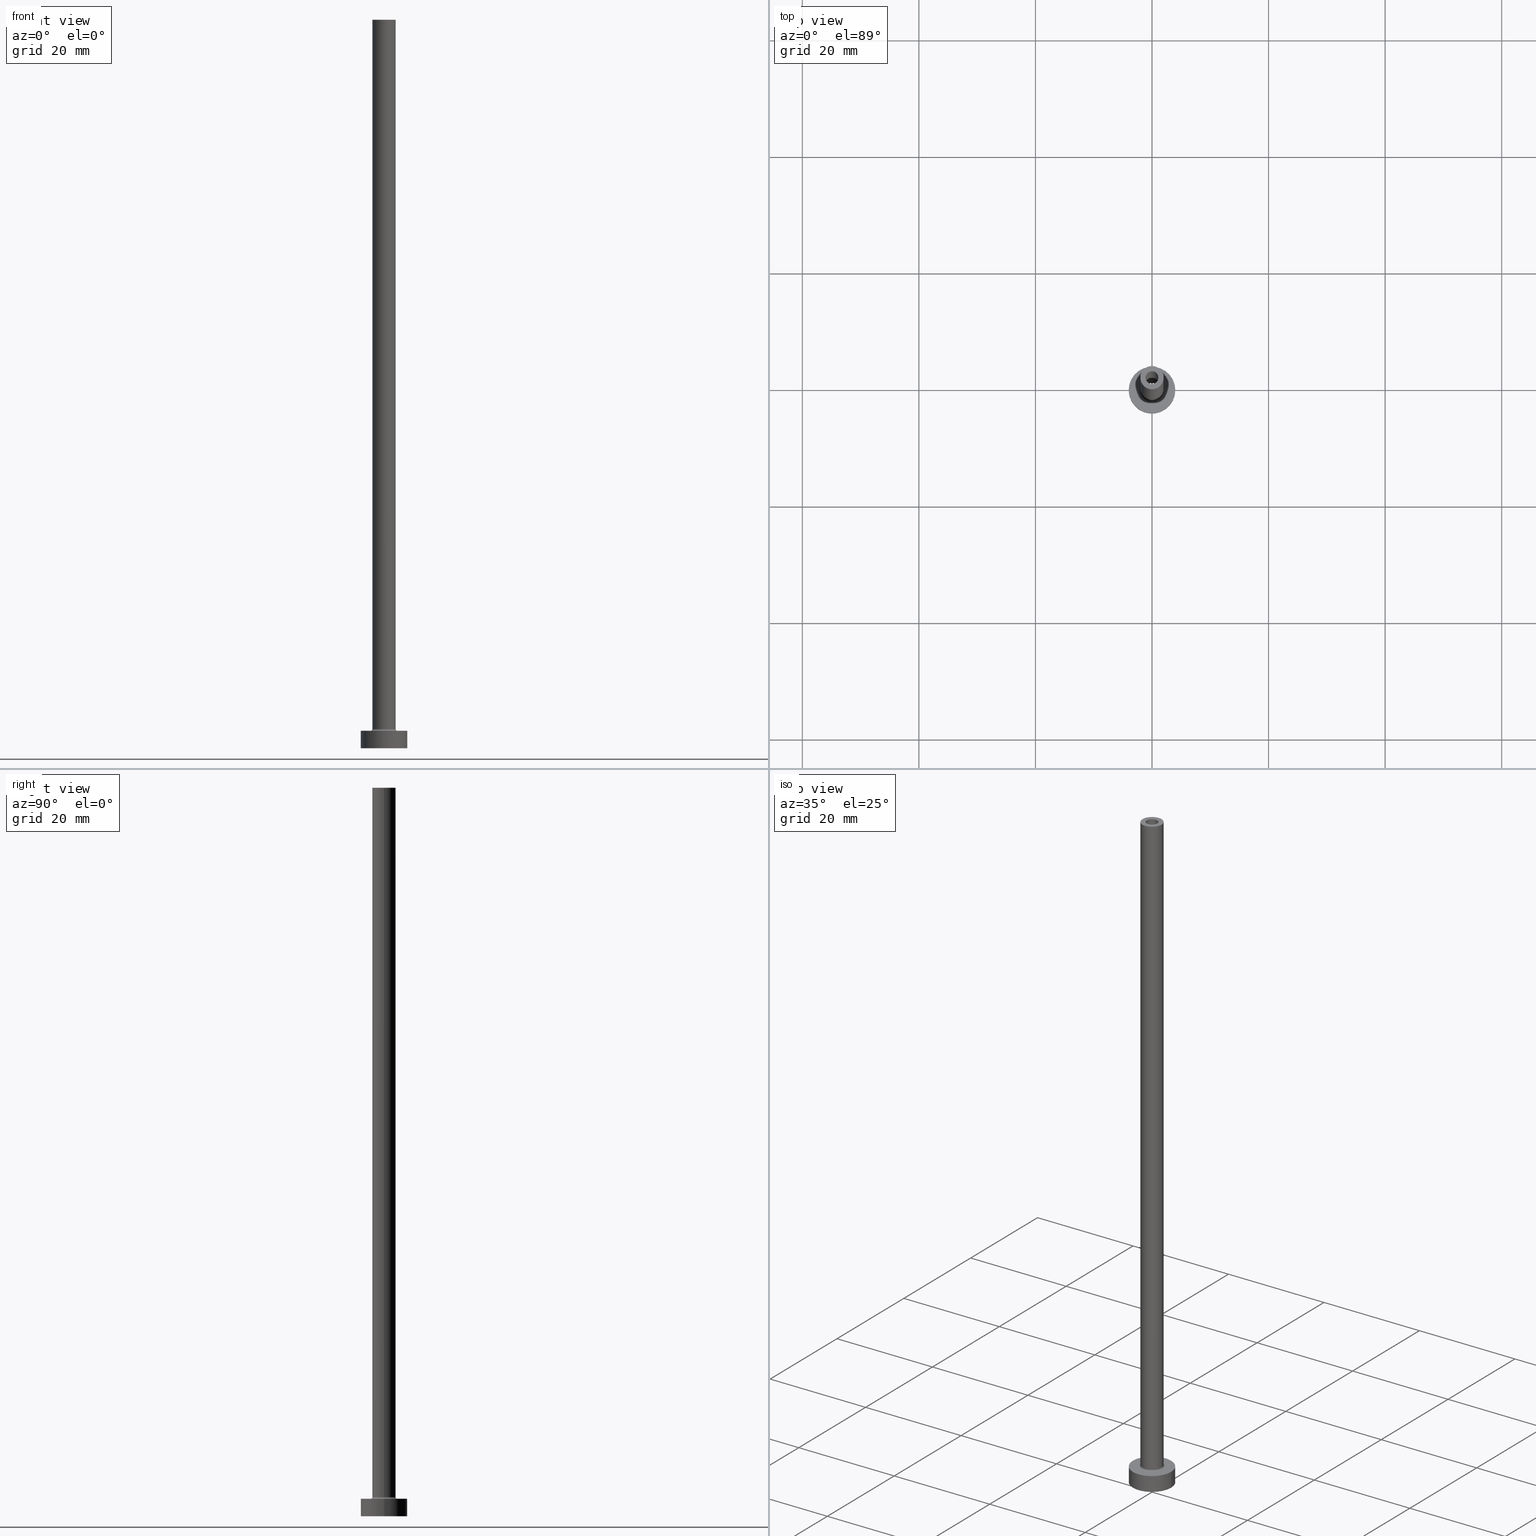
[diagram: canonical four-view strip — front | top / right | iso, engineering-drawing reading convention]
A machine part, canonical four-view strip (front | top / right | iso — engineering-drawing reading convention). The complete STEP part file that produces these views, byte-faithful:
ISO-10303-21;
HEADER;
FILE_DESCRIPTION (( 'STEP AP203' ),
    '1' );
FILE_NAME ('f923.STEP',
    '2023-02-13T18:10:54',
    ( '' ),
    ( '' ),
    'SwSTEP 2.0',
    'SolidWorks 2019',
    '' );
FILE_SCHEMA (( 'CONFIG_CONTROL_DESIGN' ));
ENDSEC;

DATA;
#1 = ORIENTED_EDGE ( 'NONE', *, *, #279, .F. ) ;
#2 = CIRCLE ( 'NONE', #133, 4.000000000000000000 ) ;
#3 = DIRECTION ( 'NONE',  ( -1.000000000000000000, 0.000000000000000000, 0.000000000000000000 ) ) ;
#4 = FACE_BOUND ( 'NONE', #40, .T. ) ;
#5 = VERTEX_POINT ( 'NONE', #278 ) ;
#6 = DIRECTION ( 'NONE',  ( 0.000000000000000000, -1.000000000000000000, 0.000000000000000000 ) ) ;
#7 = APPLICATION_PROTOCOL_DEFINITION ( 'international standard', 'config_control_design', 1994, #443 ) ;
#8 = EDGE_LOOP ( 'NONE', ( #116, #180 ) ) ;
#9 = ORIENTED_EDGE ( 'NONE', *, *, #365, .F. ) ;
#10 = CARTESIAN_POINT ( 'NONE',  ( 0.000000000000000000, 0.000000000000000000, 125.0000000000000000 ) ) ;
#11 = PERSON_AND_ORGANIZATION ( #364, #341 ) ;
#12 = EDGE_LOOP ( 'NONE', ( #249, #266 ) ) ;
#13 = AXIS2_PLACEMENT_3D ( 'NONE', #327, #405, #401 ) ;
#14 = DIRECTION ( 'NONE',  ( 0.000000000000000000, 0.000000000000000000, 1.000000000000000000 ) ) ;
#15 = EDGE_CURVE ( 'NONE', #155, #153, #230, .T. ) ;
#16 = UNCERTAINTY_MEASURE_WITH_UNIT (LENGTH_MEASURE( 1.000000000000000082E-05 ), #255, 'distance_accuracy_value', 'NONE');
#17 = PERSON_AND_ORGANIZATION_ROLE ( 'classification_officer' ) ;
#18 = FACE_BOUND ( 'NONE', #23, .T. ) ;
#19 = SHAPE_DEFINITION_REPRESENTATION ( #168, #184 ) ;
#20 = ORIENTED_EDGE ( 'NONE', *, *, #458, .F. ) ;
#21 = CARTESIAN_POINT ( 'NONE',  ( 0.000000000000000000, 0.000000000000000000, 0.000000000000000000 ) ) ;
#22 = DIRECTION ( 'NONE',  ( -0.000000000000000000, -0.000000000000000000, -1.000000000000000000 ) ) ;
#23 = EDGE_LOOP ( 'NONE', ( #142, #436 ) ) ;
#24 = CARTESIAN_POINT ( 'NONE',  ( 0.000000000000000000, 0.000000000000000000, 0.000000000000000000 ) ) ;
#25 = CARTESIAN_POINT ( 'NONE',  ( -1.100000000000000089, 0.000000000000000000, 125.0000000000000000 ) ) ;
#26 = CIRCLE ( 'NONE', #31, 2.000000000000000000 ) ;
#27 = EDGE_CURVE ( 'NONE', #251, #155, #26, .T. ) ;
#28 = DIRECTION ( 'NONE',  ( 0.000000000000000000, 0.000000000000000000, -1.000000000000000000 ) ) ;
#29 = CIRCLE ( 'NONE', #65, 1.250000000000000000 ) ;
#30 = ADVANCED_FACE ( 'NONE', ( #4, #33 ), #106, .F. ) ;
#31 = AXIS2_PLACEMENT_3D ( 'NONE', #80, #111, #77 ) ;
#32 = CC_DESIGN_DATE_AND_TIME_ASSIGNMENT ( #237, #135, ( #45 ) ) ;
#33 = FACE_OUTER_BOUND ( 'NONE', #154, .T. ) ;
#34 = TOROIDAL_SURFACE ( 'NONE', #13, 2.299999999999999822, 0.2999999999999999889 ) ;
#35 = DIRECTION ( 'NONE',  ( 1.000000000000000000, 0.000000000000000000, 0.000000000000000000 ) ) ;
#36 = DIRECTION ( 'NONE',  ( 1.224646799147353207E-16, 1.000000000000000000, -0.000000000000000000 ) ) ;
#37 = ORIENTED_EDGE ( 'NONE', *, *, #127, .F. ) ;
#38 = FACE_OUTER_BOUND ( 'NONE', #247, .T. ) ;
#39 = ORIENTED_EDGE ( 'NONE', *, *, #421, .F. ) ;
#40 = EDGE_LOOP ( 'NONE', ( #188, #43 ) ) ;
#41 = CC_DESIGN_PERSON_AND_ORGANIZATION_ASSIGNMENT ( #449, #17, ( #45 ) ) ;
#42 = LINE ( 'NONE', #192, #352 ) ;
#43 = ORIENTED_EDGE ( 'NONE', *, *, #131, .F. ) ;
#44 = EDGE_LOOP ( 'NONE', ( #49, #396, #372, #330 ) ) ;
#45 = SECURITY_CLASSIFICATION ( '', '', #415 ) ;
#46 = VERTEX_POINT ( 'NONE', #144 ) ;
#47 = ORIENTED_EDGE ( 'NONE', *, *, #27, .F. ) ;
#48 = DIRECTION ( 'NONE',  ( 1.000000000000000000, 0.000000000000000000, 0.000000000000000000 ) ) ;
#49 = ORIENTED_EDGE ( 'NONE', *, *, #69, .T. ) ;
#50 = DIRECTION ( 'NONE',  ( -1.000000000000000000, 0.000000000000000000, 0.000000000000000000 ) ) ;
#51 = FACE_OUTER_BOUND ( 'NONE', #82, .T. ) ;
#52 = CARTESIAN_POINT ( 'NONE',  ( 0.000000000000000000, 0.000000000000000000, 3.299999999999997158 ) ) ;
#53 = AXIS2_PLACEMENT_3D ( 'NONE', #404, #229, #440 ) ;
#54 = AXIS2_PLACEMENT_3D ( 'NONE', #105, #362, #35 ) ;
#55 = APPROVAL_DATE_TIME ( #310, #426 ) ;
#56 = LINE ( 'NONE', #263, #360 ) ;
#57 = DIRECTION ( 'NONE',  ( 0.000000000000000000, 0.000000000000000000, -1.000000000000000000 ) ) ;
#58 = ORIENTED_EDGE ( 'NONE', *, *, #417, .F. ) ;
#59 = CARTESIAN_POINT ( 'NONE',  ( 0.000000000000000000, 0.000000000000000000, 93.53553390593272354 ) ) ;
#60 = APPROVAL_ROLE ( '' ) ;
#61 = DIRECTION ( 'NONE',  ( 0.000000000000000000, 0.000000000000000000, 1.000000000000000000 ) ) ;
#62 = CARTESIAN_POINT ( 'NONE',  ( -4.000000000000000000, 0.000000000000000000, 3.000000000000000000 ) ) ;
#63 = FACE_OUTER_BOUND ( 'NONE', #460, .T. ) ;
#64 = EDGE_CURVE ( 'NONE', #163, #368, #367, .T. ) ;
#65 = AXIS2_PLACEMENT_3D ( 'NONE', #75, #152, #434 ) ;
#66 = ORIENTED_EDGE ( 'NONE', *, *, #417, .T. ) ;
#67 = CARTESIAN_POINT ( 'NONE',  ( 0.000000000000000000, 0.000000000000000000, 0.000000000000000000 ) ) ;
#68 = CARTESIAN_POINT ( 'NONE',  ( 0.000000000000000000, 0.000000000000000000, 0.000000000000000000 ) ) ;
#69 = EDGE_CURVE ( 'NONE', #189, #345, #76, .T. ) ;
#70 = LINE ( 'NONE', #25, #406 ) ;
#71 = ORIENTED_EDGE ( 'NONE', *, *, #326, .T. ) ;
#72 = DIRECTION ( 'NONE',  ( 1.000000000000000000, 0.000000000000000000, -0.000000000000000000 ) ) ;
#73 = COORDINATED_UNIVERSAL_TIME_OFFSET ( 1, 0, .AHEAD. ) ;
#74 = ORIENTED_EDGE ( 'NONE', *, *, #365, .T. ) ;
#75 = CARTESIAN_POINT ( 'NONE',  ( 0.000000000000000000, 0.000000000000000000, 90.00000000000000000 ) ) ;
#76 = CIRCLE ( 'NONE', #284, 1.100000000000000089 ) ;
#77 = DIRECTION ( 'NONE',  ( 1.000000000000000000, 0.000000000000000000, 0.000000000000000000 ) ) ;
#78 = DIRECTION ( 'NONE',  ( 0.000000000000000000, 0.000000000000000000, 1.000000000000000000 ) ) ;
#79 = VECTOR ( 'NONE', #419, 1000.000000000000000 ) ;
#80 = CARTESIAN_POINT ( 'NONE',  ( 0.000000000000000000, 0.000000000000000000, 3.299999999999997158 ) ) ;
#81 = PRODUCT_DEFINITION_FORMATION_WITH_SPECIFIED_SOURCE ( 'LIBOVOLN�', '', #448, .NOT_KNOWN. ) ;
#82 = EDGE_LOOP ( 'NONE', ( #1, #265, #219, #313 ) ) ;
#83 = CARTESIAN_POINT ( 'NONE',  ( 0.000000000000000000, 0.000000000000000000, 0.000000000000000000 ) ) ;
#84 = VERTEX_POINT ( 'NONE', #339 ) ;
#85 = EDGE_CURVE ( 'NONE', #345, #189, #356, .T. ) ;
#86 = DIRECTION ( 'NONE',  ( 0.000000000000000000, 0.000000000000000000, 1.000000000000000000 ) ) ;
#87 = CARTESIAN_POINT ( 'NONE',  ( 0.000000000000000000, 0.000000000000000000, 90.00000000000000000 ) ) ;
#88 = CIRCLE ( 'NONE', #427, 1.100000000000000089 ) ;
#89 = LOCAL_TIME ( 19, 10, 54.00000000000000000, #304 ) ;
#90 = DATE_AND_TIME ( #350, #89 ) ;
#91 = DIRECTION ( 'NONE',  ( 0.000000000000000000, 0.000000000000000000, -1.000000000000000000 ) ) ;
#92 = APPROVAL_DATE_TIME ( #171, #122 ) ;
#93 = DIRECTION ( 'NONE',  ( 0.000000000000000000, 0.000000000000000000, -1.000000000000000000 ) ) ;
#94 = CALENDAR_DATE ( 2023, 13, 2 ) ;
#95 = FACE_OUTER_BOUND ( 'NONE', #435, .T. ) ;
#96 = AXIS2_PLACEMENT_3D ( 'NONE', #52, #378, #120 ) ;
#97 = AXIS2_PLACEMENT_3D ( 'NONE', #267, #22, #211 ) ;
#98 = DIRECTION ( 'NONE',  ( 0.000000000000000000, 0.000000000000000000, -1.000000000000000000 ) ) ;
#99 = EDGE_CURVE ( 'NONE', #251, #399, #445, .T. ) ;
#100 = FACE_BOUND ( 'NONE', #8, .T. ) ;
#101 = AXIS2_PLACEMENT_3D ( 'NONE', #68, #408, #295 ) ;
#102 = AXIS2_PLACEMENT_3D ( 'NONE', #423, #28, #246 ) ;
#103 = DIRECTION ( 'NONE',  ( 0.000000000000000000, 0.000000000000000000, 1.000000000000000000 ) ) ;
#104 = ADVANCED_FACE ( 'NONE', ( #387 ), #444, .T. ) ;
#105 = CARTESIAN_POINT ( 'NONE',  ( 0.000000000000000000, 0.000000000000000000, 125.0000000000000000 ) ) ;
#106 = PLANE ( 'NONE',  #420 ) ;
#107 = APPROVAL_STATUS ( 'not_yet_approved' ) ;
#108 = AXIS2_PLACEMENT_3D ( 'NONE', #308, #14, #124 ) ;
#109 = ADVANCED_FACE ( 'NONE', ( #256 ), #149, .F. ) ;
#110 = APPROVAL_PERSON_ORGANIZATION ( #11, #122, #261 ) ;
#111 = DIRECTION ( 'NONE',  ( 0.000000000000000000, 0.000000000000000000, 1.000000000000000000 ) ) ;
#112 = CARTESIAN_POINT ( 'NONE',  ( 2.299999999999999822, 0.000000000000000000, 2.999999999999998668 ) ) ;
#113 = EDGE_LOOP ( 'NONE', ( #39, #235, #400, #20 ) ) ;
#114 = DIRECTION ( 'NONE',  ( 0.000000000000000000, 0.000000000000000000, 1.000000000000000000 ) ) ;
#115 = LINE ( 'NONE', #380, #165 ) ;
#116 = ORIENTED_EDGE ( 'NONE', *, *, #69, .F. ) ;
#117 = CARTESIAN_POINT ( 'NONE',  ( 0.000000000000000000, 0.000000000000000000, 125.0000000000000000 ) ) ;
#118 = ORIENTED_EDGE ( 'NONE', *, *, #244, .F. ) ;
#119 = AXIS2_PLACEMENT_3D ( 'NONE', #414, #6, #91 ) ;
#120 = DIRECTION ( 'NONE',  ( 1.000000000000000000, 0.000000000000000000, 0.000000000000000000 ) ) ;
#121 = AXIS2_PLACEMENT_3D ( 'NONE', #291, #374, #283 ) ;
#122 = APPROVAL ( #418, 'NEUR�EN�' ) ;
#123 = CARTESIAN_POINT ( 'NONE',  ( 0.000000000000000000, 0.000000000000000000, 3.000000000000000000 ) ) ;
#124 = DIRECTION ( 'NONE',  ( 1.000000000000000000, 0.000000000000000000, 0.000000000000000000 ) ) ;
#125 = CALENDAR_DATE ( 2023, 13, 2 ) ;
#126 = EDGE_LOOP ( 'NONE', ( #71, #431 ) ) ;
#127 = EDGE_CURVE ( 'NONE', #5, #163, #56, .T. ) ;
#128 = CARTESIAN_POINT ( 'NONE',  ( -2.000000000000000000, 0.000000000000000000, 3.299999999999997158 ) ) ;
#129 = DESIGN_CONTEXT ( 'detailed design', #443, 'design' ) ;
#130 = APPROVAL_DATE_TIME ( #90, #355 ) ;
#131 = EDGE_CURVE ( 'NONE', #368, #163, #274, .T. ) ;
#132 = DIRECTION ( 'NONE',  ( 1.000000000000000000, 0.000000000000000000, 0.000000000000000000 ) ) ;
#133 = AXIS2_PLACEMENT_3D ( 'NONE', #394, #177, #206 ) ;
#134 = CYLINDRICAL_SURFACE ( 'NONE', #97, 4.000000000000000000 ) ;
#135 = DATE_TIME_ROLE ( 'classification_date' ) ;
#136 = CARTESIAN_POINT ( 'NONE',  ( 0.000000000000000000, 0.000000000000000000, 125.0000000000000000 ) ) ;
#137 = ADVANCED_FACE ( 'NONE', ( #236 ), #204, .F. ) ;
#138 = CARTESIAN_POINT ( 'NONE',  ( -4.000000000000000000, 0.000000000000000000, 0.000000000000000000 ) ) ;
#139 = AXIS2_PLACEMENT_3D ( 'NONE', #83, #226, #195 ) ;
#140 = AXIS2_PLACEMENT_3D ( 'NONE', #123, #148, #289 ) ;
#141 = DIRECTION ( 'NONE',  ( 0.000000000000000000, 0.000000000000000000, -1.000000000000000000 ) ) ;
#142 = ORIENTED_EDGE ( 'NONE', *, *, #410, .T. ) ;
#143 = LINE ( 'NONE', #62, #240 ) ;
#144 = CARTESIAN_POINT ( 'NONE',  ( 1.250000000000000000, 1.530808498934191571E-16, 90.00000000000000000 ) ) ;
#145 = EDGE_CURVE ( 'NONE', #218, #302, #382, .T. ) ;
#146 = AXIS2_PLACEMENT_3D ( 'NONE', #453, #141, #450 ) ;
#147 = ORIENTED_EDGE ( 'NONE', *, *, #131, .T. ) ;
#148 = DIRECTION ( 'NONE',  ( 0.000000000000000000, 0.000000000000000000, 1.000000000000000000 ) ) ;
#149 = TOROIDAL_SURFACE ( 'NONE', #96, 2.299999999999999822, 0.2999999999999999889 ) ;
#150 = DIRECTION ( 'NONE',  ( 0.000000000000000000, 0.000000000000000000, -1.000000000000000000 ) ) ;
#151 = AXIS2_PLACEMENT_3D ( 'NONE', #325, #459, #3 ) ;
#152 = DIRECTION ( 'NONE',  ( 0.000000000000000000, 0.000000000000000000, 1.000000000000000000 ) ) ;
#153 = VERTEX_POINT ( 'NONE', #342 ) ;
#154 = EDGE_LOOP ( 'NONE', ( #169, #9 ) ) ;
#155 = VERTEX_POINT ( 'NONE', #128 ) ;
#156 = DIRECTION ( 'NONE',  ( 0.000000000000000000, 0.000000000000000000, -1.000000000000000000 ) ) ;
#157 = ORIENTED_EDGE ( 'NONE', *, *, #127, .T. ) ;
#158 = CARTESIAN_POINT ( 'NONE',  ( -4.000000000000000000, 0.000000000000000000, 3.000000000000000000 ) ) ;
#159 = AXIS2_PLACEMENT_3D ( 'NONE', #243, #280, #212 ) ;
#160 = DIRECTION ( 'NONE',  ( -0.000000000000000000, -0.000000000000000000, -1.000000000000000000 ) ) ;
#161 = COORDINATED_UNIVERSAL_TIME_OFFSET ( 1, 0, .AHEAD. ) ;
#162 = CARTESIAN_POINT ( 'NONE',  ( -1.100000000000000089, 0.000000000000000000, 125.0000000000000000 ) ) ;
#163 = VERTEX_POINT ( 'NONE', #411 ) ;
#164 = PLANE ( 'NONE',  #53 ) ;
#165 = VECTOR ( 'NONE', #160, 1000.000000000000000 ) ;
#166 = CIRCLE ( 'NONE', #358, 4.000000000000000000 ) ;
#167 = APPLICATION_CONTEXT ( 'configuration controlled 3d designs of mechanical parts and assemblies' ) ;
#168 = PRODUCT_DEFINITION_SHAPE ( 'NONE', 'NONE',  #307 ) ;
#169 = ORIENTED_EDGE ( 'NONE', *, *, #145, .F. ) ;
#170 = DIRECTION ( 'NONE',  ( 0.000000000000000000, 0.000000000000000000, 1.000000000000000000 ) ) ;
#171 = DATE_AND_TIME ( #94, #199 ) ;
#172 = VERTEX_POINT ( 'NONE', #158 ) ;
#173 = CARTESIAN_POINT ( 'NONE',  ( 1.250000000000000000, 1.530808498934191571E-16, 0.000000000000000000 ) ) ;
#174 = ADVANCED_FACE ( 'NONE', ( #18, #301 ), #164, .T. ) ;
#175 = DIRECTION ( 'NONE',  ( 1.000000000000000000, 0.000000000000000000, 0.000000000000000000 ) ) ;
#176 = CC_DESIGN_SECURITY_CLASSIFICATION ( #45, ( #81 ) ) ;
#177 = DIRECTION ( 'NONE',  ( 0.000000000000000000, 0.000000000000000000, 1.000000000000000000 ) ) ;
#178 = EDGE_CURVE ( 'NONE', #203, #323, #369, .T. ) ;
#179 = EDGE_CURVE ( 'NONE', #403, #251, #115, .T. ) ;
#180 = ORIENTED_EDGE ( 'NONE', *, *, #85, .F. ) ;
#181 = ORIENTED_EDGE ( 'NONE', *, *, #282, .F. ) ;
#182 = ADVANCED_FACE ( 'NONE', ( #441, #254 ), #260, .F. ) ;
#183 = FACE_OUTER_BOUND ( 'NONE', #216, .T. ) ;
#184 = ADVANCED_BREP_SHAPE_REPRESENTATION ( 'f923', ( #227, #121 ), #200 ) ;
#185 = ORIENTED_EDGE ( 'NONE', *, *, #447, .F. ) ;
#186 = CC_DESIGN_PERSON_AND_ORGANIZATION_ASSIGNMENT ( #379, #336, ( #448 ) ) ;
#187 = DIRECTION ( 'NONE',  ( -0.000000000000000000, -0.000000000000000000, -1.000000000000000000 ) ) ;
#188 = ORIENTED_EDGE ( 'NONE', *, *, #64, .F. ) ;
#189 = VERTEX_POINT ( 'NONE', #162 ) ;
#190 = APPLICATION_PROTOCOL_DEFINITION ( 'international standard', 'config_control_design', 1994, #167 ) ;
#191 = AXIS2_PLACEMENT_3D ( 'NONE', #59, #93, #429 ) ;
#192 = CARTESIAN_POINT ( 'NONE',  ( 1.250000000000000000, 1.530808498934191571E-16, 93.53553390593272354 ) ) ;
#193 = ORIENTED_EDGE ( 'NONE', *, *, #326, .F. ) ;
#194 = EDGE_LOOP ( 'NONE', ( #181, #58 ) ) ;
#195 = DIRECTION ( 'NONE',  ( 1.000000000000000000, 0.000000000000000000, 0.000000000000000000 ) ) ;
#196 = DIRECTION ( 'NONE',  ( 0.000000000000000000, 0.000000000000000000, 1.000000000000000000 ) ) ;
#197 = CARTESIAN_POINT ( 'NONE',  ( 0.000000000000000000, 0.000000000000000000, 125.0000000000000000 ) ) ;
#198 = AXIS2_PLACEMENT_3D ( 'NONE', #21, #86, #346 ) ;
#199 = LOCAL_TIME ( 19, 10, 54.00000000000000000, #412 ) ;
#200 =( GEOMETRIC_REPRESENTATION_CONTEXT ( 3 ) GLOBAL_UNCERTAINTY_ASSIGNED_CONTEXT ( ( #16 ) ) GLOBAL_UNIT_ASSIGNED_CONTEXT ( ( #255, #250, #228 ) ) REPRESENTATION_CONTEXT ( 'NONE', 'WORKASPACE' ) );
#201 = PERSON_AND_ORGANIZATION ( #364, #341 ) ;
#202 = DIRECTION ( 'NONE',  ( 0.000000000000000000, 0.000000000000000000, 1.000000000000000000 ) ) ;
#203 = VERTEX_POINT ( 'NONE', #232 ) ;
#204 = CYLINDRICAL_SURFACE ( 'NONE', #452, 1.100000000000000089 ) ;
#205 = EDGE_CURVE ( 'NONE', #323, #203, #88, .T. ) ;
#206 = DIRECTION ( 'NONE',  ( 1.000000000000000000, 0.000000000000000000, 0.000000000000000000 ) ) ;
#207 = AXIS2_PLACEMENT_3D ( 'NONE', #388, #354, #175 ) ;
#208 = PERSON_AND_ORGANIZATION ( #364, #341 ) ;
#209 = CC_DESIGN_DATE_AND_TIME_ASSIGNMENT ( #340, #270, ( #307 ) ) ;
#210 = FACE_OUTER_BOUND ( 'NONE', #324, .T. ) ;
#211 = DIRECTION ( 'NONE',  ( -1.000000000000000000, 0.000000000000000000, 0.000000000000000000 ) ) ;
#212 = DIRECTION ( 'NONE',  ( 1.000000000000000000, 0.000000000000000000, 0.000000000000000000 ) ) ;
#213 = AXIS2_PLACEMENT_3D ( 'NONE', #136, #318, #272 ) ;
#214 = ADVANCED_FACE ( 'NONE', ( #305 ), #446, .F. ) ;
#215 = CARTESIAN_POINT ( 'NONE',  ( 4.000000000000000000, 4.898587196589412829E-16, 3.000000000000000000 ) ) ;
#216 = EDGE_LOOP ( 'NONE', ( #223, #241, #74, #290 ) ) ;
#217 = ORIENTED_EDGE ( 'NONE', *, *, #205, .T. ) ;
#218 = VERTEX_POINT ( 'NONE', #138 ) ;
#219 = ORIENTED_EDGE ( 'NONE', *, *, #410, .F. ) ;
#220 = AXIS2_PLACEMENT_3D ( 'NONE', #10, #335, #132 ) ;
#221 = CC_DESIGN_PERSON_AND_ORGANIZATION_ASSIGNMENT ( #201, #409, ( #307 ) ) ;
#222 = DIRECTION ( 'NONE',  ( -0.000000000000000000, -0.000000000000000000, -1.000000000000000000 ) ) ;
#223 = ORIENTED_EDGE ( 'NONE', *, *, #389, .F. ) ;
#224 = DIRECTION ( 'NONE',  ( 1.000000000000000000, 0.000000000000000000, -0.000000000000000000 ) ) ;
#225 = CARTESIAN_POINT ( 'NONE',  ( 2.000000000000000000, 2.449293598294705921E-16, 125.0000000000000000 ) ) ;
#226 = DIRECTION ( 'NONE',  ( -0.000000000000000000, -0.000000000000000000, -1.000000000000000000 ) ) ;
#227 = MANIFOLD_SOLID_BREP ( 'Odebrat vysunut�m4', #315 ) ;
#228 =( NAMED_UNIT ( * ) SI_UNIT ( $, .STERADIAN. ) SOLID_ANGLE_UNIT ( ) );
#229 = DIRECTION ( 'NONE',  ( 0.000000000000000000, 0.000000000000000000, 1.000000000000000000 ) ) ;
#230 = CIRCLE ( 'NONE', #457, 0.2999999999999999334 ) ;
#231 = CALENDAR_DATE ( 2023, 13, 2 ) ;
#232 = CARTESIAN_POINT ( 'NONE',  ( -1.100000000000000089, 0.000000000000000000, 90.00000000000000000 ) ) ;
#233 = AXIS2_PLACEMENT_3D ( 'NONE', #257, #187, #331 ) ;
#234 = PERSON_AND_ORGANIZATION_ROLE ( 'design_supplier' ) ;
#235 = ORIENTED_EDGE ( 'NONE', *, *, #179, .T. ) ;
#236 = FACE_OUTER_BOUND ( 'NONE', #44, .T. ) ;
#237 = DATE_AND_TIME ( #231, #428 ) ;
#238 = DIRECTION ( 'NONE',  ( 1.000000000000000000, 0.000000000000000000, 0.000000000000000000 ) ) ;
#239 = DIRECTION ( 'NONE',  ( -1.000000000000000000, 0.000000000000000000, 0.000000000000000000 ) ) ;
#240 = VECTOR ( 'NONE', #390, 1000.000000000000000 ) ;
#241 = ORIENTED_EDGE ( 'NONE', *, *, #244, .T. ) ;
#242 = CARTESIAN_POINT ( 'NONE',  ( 1.100000000000000089, 1.347111479062088503E-16, 90.00000000000000000 ) ) ;
#243 = CARTESIAN_POINT ( 'NONE',  ( 0.000000000000000000, 0.000000000000000000, 90.00000000000000000 ) ) ;
#244 = EDGE_CURVE ( 'NONE', #334, #302, #277, .T. ) ;
#245 = LOCAL_TIME ( 19, 10, 54.00000000000000000, #344 ) ;
#246 = DIRECTION ( 'NONE',  ( -1.000000000000000000, 0.000000000000000000, 0.000000000000000000 ) ) ;
#247 = EDGE_LOOP ( 'NONE', ( #285, #337, #338, #271 ) ) ;
#248 = APPROVAL_ROLE ( '' ) ;
#249 = ORIENTED_EDGE ( 'NONE', *, *, #359, .T. ) ;
#250 =( NAMED_UNIT ( * ) PLANE_ANGLE_UNIT ( ) SI_UNIT ( $, .RADIAN. ) );
#251 = VERTEX_POINT ( 'NONE', #416 ) ;
#252 = ADVANCED_FACE ( 'NONE', ( #210 ), #311, .T. ) ;
#253 = CYLINDRICAL_SURFACE ( 'NONE', #151, 2.000000000000000000 ) ;
#254 = FACE_OUTER_BOUND ( 'NONE', #194, .T. ) ;
#255 =( LENGTH_UNIT ( ) NAMED_UNIT ( * ) SI_UNIT ( .MILLI., .METRE. ) );
#256 = FACE_OUTER_BOUND ( 'NONE', #385, .T. ) ;
#257 = CARTESIAN_POINT ( 'NONE',  ( 0.000000000000000000, 0.000000000000000000, 3.000000000000000000 ) ) ;
#258 = DIRECTION ( 'NONE',  ( -0.000000000000000000, -0.000000000000000000, -1.000000000000000000 ) ) ;
#259 = EDGE_LOOP ( 'NONE', ( #437, #217 ) ) ;
#260 = PLANE ( 'NONE',  #286 ) ;
#261 = APPROVAL_ROLE ( '' ) ;
#262 = ORIENTED_EDGE ( 'NONE', *, *, #447, .T. ) ;
#263 = CARTESIAN_POINT ( 'NONE',  ( -1.250000000000000000, 0.000000000000000000, 93.53553390593272354 ) ) ;
#264 = CIRCLE ( 'NONE', #54, 2.000000000000000000 ) ;
#265 = ORIENTED_EDGE ( 'NONE', *, *, #15, .T. ) ;
#266 = ORIENTED_EDGE ( 'NONE', *, *, #421, .T. ) ;
#267 = CARTESIAN_POINT ( 'NONE',  ( 0.000000000000000000, 0.000000000000000000, 3.000000000000000000 ) ) ;
#268 = PRODUCT_RELATED_PRODUCT_CATEGORY ( 'detail', '', ( #448 ) ) ;
#269 = ADVANCED_FACE ( 'NONE', ( #100, #275 ), #392, .T. ) ;
#270 = DATE_TIME_ROLE ( 'creation_date' ) ;
#271 = ORIENTED_EDGE ( 'NONE', *, *, #279, .T. ) ;
#272 = DIRECTION ( 'NONE',  ( 1.000000000000000000, 0.000000000000000000, -0.000000000000000000 ) ) ;
#273 = PERSON_AND_ORGANIZATION ( #364, #341 ) ;
#274 = CIRCLE ( 'NONE', #139, 1.250000000000000000 ) ;
#275 = FACE_OUTER_BOUND ( 'NONE', #12, .T. ) ;
#276 = CIRCLE ( 'NONE', #361, 2.000000000000000000 ) ;
#277 = LINE ( 'NONE', #451, #79 ) ;
#278 = CARTESIAN_POINT ( 'NONE',  ( -1.250000000000000000, 0.000000000000000000, 90.00000000000000000 ) ) ;
#279 = EDGE_CURVE ( 'NONE', #155, #251, #439, .T. ) ;
#280 = DIRECTION ( 'NONE',  ( 0.000000000000000000, 0.000000000000000000, 1.000000000000000000 ) ) ;
#281 = LOCAL_TIME ( 19, 10, 54.00000000000000000, #73 ) ;
#282 = EDGE_CURVE ( 'NONE', #5, #46, #309, .T. ) ;
#283 = DIRECTION ( 'NONE',  ( 1.000000000000000000, 0.000000000000000000, 0.000000000000000000 ) ) ;
#284 = AXIS2_PLACEMENT_3D ( 'NONE', #303, #196, #48 ) ;
#285 = ORIENTED_EDGE ( 'NONE', *, *, #179, .F. ) ;
#286 = AXIS2_PLACEMENT_3D ( 'NONE', #87, #78, #224 ) ;
#287 = MECHANICAL_CONTEXT ( 'NONE', #167, 'mechanical' ) ;
#288 = APPROVAL_PERSON_ORGANIZATION ( #322, #426, #248 ) ;
#289 = DIRECTION ( 'NONE',  ( 1.000000000000000000, 0.000000000000000000, 0.000000000000000000 ) ) ;
#290 = ORIENTED_EDGE ( 'NONE', *, *, #343, .F. ) ;
#291 = CARTESIAN_POINT ( 'NONE',  ( 0.000000000000000000, 0.000000000000000000, 0.000000000000000000 ) ) ;
#292 = ORIENTED_EDGE ( 'NONE', *, *, #343, .T. ) ;
#293 = ORIENTED_EDGE ( 'NONE', *, *, #205, .F. ) ;
#294 = ORIENTED_EDGE ( 'NONE', *, *, #64, .T. ) ;
#295 = DIRECTION ( 'NONE',  ( 1.000000000000000000, 0.000000000000000000, 0.000000000000000000 ) ) ;
#296 = AXIS2_PLACEMENT_3D ( 'NONE', #407, #258, #349 ) ;
#297 = ADVANCED_FACE ( 'NONE', ( #95 ), #353, .F. ) ;
#298 = DIRECTION ( 'NONE',  ( 0.000000000000000000, 0.000000000000000000, -1.000000000000000000 ) ) ;
#299 = ORIENTED_EDGE ( 'NONE', *, *, #386, .F. ) ;
#300 = CIRCLE ( 'NONE', #207, 2.299999999999999822 ) ;
#301 = FACE_OUTER_BOUND ( 'NONE', #126, .T. ) ;
#302 = VERTEX_POINT ( 'NONE', #395 ) ;
#303 = CARTESIAN_POINT ( 'NONE',  ( 0.000000000000000000, 0.000000000000000000, 125.0000000000000000 ) ) ;
#304 = COORDINATED_UNIVERSAL_TIME_OFFSET ( 1, 0, .AHEAD. ) ;
#305 = FACE_OUTER_BOUND ( 'NONE', #393, .T. ) ;
#306 = APPROVAL_STATUS ( 'not_yet_approved' ) ;
#307 = PRODUCT_DEFINITION ( 'NEZN�M�', '', #81, #129 ) ;
#308 = CARTESIAN_POINT ( 'NONE',  ( 0.000000000000000000, 0.000000000000000000, 90.00000000000000000 ) ) ;
#309 = CIRCLE ( 'NONE', #159, 1.250000000000000000 ) ;
#310 = DATE_AND_TIME ( #442, #281 ) ;
#311 = CYLINDRICAL_SURFACE ( 'NONE', #424, 4.000000000000000000 ) ;
#312 = ORIENTED_EDGE ( 'NONE', *, *, #15, .F. ) ;
#313 = ORIENTED_EDGE ( 'NONE', *, *, #99, .F. ) ;
#314 = CARTESIAN_POINT ( 'NONE',  ( 0.000000000000000000, 0.000000000000000000, 3.000000000000000000 ) ) ;
#315 = CLOSED_SHELL ( 'NONE', ( #137, #214, #376, #104, #370, #252, #174, #30, #391, #269, #109, #333, #182, #297 ) ) ;
#316 = CARTESIAN_POINT ( 'NONE',  ( 0.000000000000000000, 0.000000000000000000, 3.299999999999997158 ) ) ;
#317 = CC_DESIGN_APPROVAL ( #426, ( #307 ) ) ;
#318 = DIRECTION ( 'NONE',  ( 0.000000000000000000, 0.000000000000000000, 1.000000000000000000 ) ) ;
#319 = CC_DESIGN_PERSON_AND_ORGANIZATION_ASSIGNMENT ( #347, #381, ( #81 ) ) ;
#320 = EDGE_CURVE ( 'NONE', #189, #203, #70, .T. ) ;
#321 = VECTOR ( 'NONE', #298, 1000.000000000000000 ) ;
#322 = PERSON_AND_ORGANIZATION ( #364, #341 ) ;
#323 = VERTEX_POINT ( 'NONE', #242 ) ;
#324 = EDGE_LOOP ( 'NONE', ( #118, #193, #292, #366 ) ) ;
#325 = CARTESIAN_POINT ( 'NONE',  ( 0.000000000000000000, 0.000000000000000000, 125.0000000000000000 ) ) ;
#326 = EDGE_CURVE ( 'NONE', #172, #334, #2, .T. ) ;
#327 = CARTESIAN_POINT ( 'NONE',  ( 0.000000000000000000, 0.000000000000000000, 3.299999999999997158 ) ) ;
#328 = ORIENTED_EDGE ( 'NONE', *, *, #375, .F. ) ;
#329 = VECTOR ( 'NONE', #222, 1000.000000000000000 ) ;
#330 = ORIENTED_EDGE ( 'NONE', *, *, #320, .F. ) ;
#331 = DIRECTION ( 'NONE',  ( 1.000000000000000000, 0.000000000000000000, 0.000000000000000000 ) ) ;
#332 = ORIENTED_EDGE ( 'NONE', *, *, #320, .T. ) ;
#333 = ADVANCED_FACE ( 'NONE', ( #63 ), #456, .F. ) ;
#334 = VERTEX_POINT ( 'NONE', #215 ) ;
#335 = DIRECTION ( 'NONE',  ( 0.000000000000000000, 0.000000000000000000, 1.000000000000000000 ) ) ;
#336 = PERSON_AND_ORGANIZATION_ROLE ( 'design_owner' ) ;
#337 = ORIENTED_EDGE ( 'NONE', *, *, #359, .F. ) ;
#338 = ORIENTED_EDGE ( 'NONE', *, *, #458, .T. ) ;
#339 = CARTESIAN_POINT ( 'NONE',  ( -2.000000000000000000, 0.000000000000000000, 125.0000000000000000 ) ) ;
#340 = DATE_AND_TIME ( #125, #245 ) ;
#341 = ORGANIZATION ( 'NEUR�EN�', 'NEUR�EN�', '' ) ;
#342 = CARTESIAN_POINT ( 'NONE',  ( -2.299999999999999822, 2.816687638038912056E-16, 2.999999999999998668 ) ) ;
#343 = EDGE_CURVE ( 'NONE', #172, #218, #143, .T. ) ;
#344 = COORDINATED_UNIVERSAL_TIME_OFFSET ( 1, 0, .AHEAD. ) ;
#345 = VERTEX_POINT ( 'NONE', #351 ) ;
#346 = DIRECTION ( 'NONE',  ( 1.000000000000000000, 0.000000000000000000, 0.000000000000000000 ) ) ;
#347 = PERSON_AND_ORGANIZATION ( #364, #341 ) ;
#348 = CC_DESIGN_PERSON_AND_ORGANIZATION_ASSIGNMENT ( #208, #234, ( #81 ) ) ;
#349 = DIRECTION ( 'NONE',  ( -1.000000000000000000, 0.000000000000000000, 0.000000000000000000 ) ) ;
#350 = CALENDAR_DATE ( 2023, 13, 2 ) ;
#351 = CARTESIAN_POINT ( 'NONE',  ( 1.100000000000000089, 1.347111479062088503E-16, 125.0000000000000000 ) ) ;
#352 = VECTOR ( 'NONE', #150, 1000.000000000000000 ) ;
#353 = CYLINDRICAL_SURFACE ( 'NONE', #102, 1.100000000000000089 ) ;
#354 = DIRECTION ( 'NONE',  ( -0.000000000000000000, -0.000000000000000000, -1.000000000000000000 ) ) ;
#355 = APPROVAL ( #306, 'NEUR�EN�' ) ;
#356 = CIRCLE ( 'NONE', #220, 1.100000000000000089 ) ;
#357 = DIRECTION ( 'NONE',  ( 1.000000000000000000, 0.000000000000000000, 0.000000000000000000 ) ) ;
#358 = AXIS2_PLACEMENT_3D ( 'NONE', #24, #61, #238 ) ;
#359 = EDGE_CURVE ( 'NONE', #84, #403, #264, .T. ) ;
#360 = VECTOR ( 'NONE', #156, 1000.000000000000000 ) ;
#361 = AXIS2_PLACEMENT_3D ( 'NONE', #117, #114, #461 ) ;
#362 = DIRECTION ( 'NONE',  ( 0.000000000000000000, 0.000000000000000000, 1.000000000000000000 ) ) ;
#363 = CARTESIAN_POINT ( 'NONE',  ( -2.299999999999999822, 2.816687638038912056E-16, 3.299999999999997158 ) ) ;
#364 = PERSON ( 'NEUR�EN�', 'NEUR�EN�', 'NEUR�EN�', ('NEUR�EN�'), ('NEUR�EN�'), ('NEUR�EN�') ) ;
#365 = EDGE_CURVE ( 'NONE', #302, #218, #166, .T. ) ;
#366 = ORIENTED_EDGE ( 'NONE', *, *, #145, .T. ) ;
#367 = CIRCLE ( 'NONE', #101, 1.250000000000000000 ) ;
#368 = VERTEX_POINT ( 'NONE', #173 ) ;
#369 = CIRCLE ( 'NONE', #108, 1.100000000000000089 ) ;
#370 = ADVANCED_FACE ( 'NONE', ( #183 ), #134, .T. ) ;
#371 = CIRCLE ( 'NONE', #140, 4.000000000000000000 ) ;
#372 = ORIENTED_EDGE ( 'NONE', *, *, #178, .F. ) ;
#373 = DIRECTION ( 'NONE',  ( 1.000000000000000000, 0.000000000000000000, 0.000000000000000000 ) ) ;
#374 = DIRECTION ( 'NONE',  ( 0.000000000000000000, 0.000000000000000000, 1.000000000000000000 ) ) ;
#375 = EDGE_CURVE ( 'NONE', #153, #399, #300, .T. ) ;
#376 = ADVANCED_FACE ( 'NONE', ( #51 ), #34, .F. ) ;
#377 = ORIENTED_EDGE ( 'NONE', *, *, #85, .T. ) ;
#378 = DIRECTION ( 'NONE',  ( 0.000000000000000000, 0.000000000000000000, 1.000000000000000000 ) ) ;
#379 = PERSON_AND_ORGANIZATION ( #364, #341 ) ;
#380 = CARTESIAN_POINT ( 'NONE',  ( 2.000000000000000000, 2.449293598294705921E-16, 125.0000000000000000 ) ) ;
#381 = PERSON_AND_ORGANIZATION_ROLE ( 'creator' ) ;
#382 = CIRCLE ( 'NONE', #198, 4.000000000000000000 ) ;
#383 = CC_DESIGN_APPROVAL ( #122, ( #45 ) ) ;
#384 = CARTESIAN_POINT ( 'NONE',  ( 0.000000000000000000, 0.000000000000000000, 90.00000000000000000 ) ) ;
#385 = EDGE_LOOP ( 'NONE', ( #312, #47, #422, #328 ) ) ;
#386 = EDGE_CURVE ( 'NONE', #345, #323, #398, .T. ) ;
#387 = FACE_OUTER_BOUND ( 'NONE', #113, .T. ) ;
#388 = CARTESIAN_POINT ( 'NONE',  ( 0.000000000000000000, 0.000000000000000000, 3.000000000000000000 ) ) ;
#389 = EDGE_CURVE ( 'NONE', #334, #172, #371, .T. ) ;
#390 = DIRECTION ( 'NONE',  ( -0.000000000000000000, -0.000000000000000000, -1.000000000000000000 ) ) ;
#391 = ADVANCED_FACE ( 'NONE', ( #38 ), #253, .T. ) ;
#392 = PLANE ( 'NONE',  #213 ) ;
#393 = EDGE_LOOP ( 'NONE', ( #433, #262, #147, #37 ) ) ;
#394 = CARTESIAN_POINT ( 'NONE',  ( 0.000000000000000000, 0.000000000000000000, 3.000000000000000000 ) ) ;
#395 = CARTESIAN_POINT ( 'NONE',  ( 4.000000000000000000, 4.898587196589412829E-16, 0.000000000000000000 ) ) ;
#396 = ORIENTED_EDGE ( 'NONE', *, *, #386, .T. ) ;
#397 = APPROVAL_PERSON_ORGANIZATION ( #273, #355, #60 ) ;
#398 = LINE ( 'NONE', #432, #321 ) ;
#399 = VERTEX_POINT ( 'NONE', #112 ) ;
#400 = ORIENTED_EDGE ( 'NONE', *, *, #27, .T. ) ;
#401 = DIRECTION ( 'NONE',  ( 1.000000000000000000, 0.000000000000000000, 0.000000000000000000 ) ) ;
#402 = CARTESIAN_POINT ( 'NONE',  ( -2.000000000000000000, 0.000000000000000000, 125.0000000000000000 ) ) ;
#403 = VERTEX_POINT ( 'NONE', #225 ) ;
#404 = CARTESIAN_POINT ( 'NONE',  ( 0.000000000000000000, 0.000000000000000000, 3.000000000000000000 ) ) ;
#405 = DIRECTION ( 'NONE',  ( 0.000000000000000000, 0.000000000000000000, 1.000000000000000000 ) ) ;
#406 = VECTOR ( 'NONE', #98, 1000.000000000000000 ) ;
#407 = CARTESIAN_POINT ( 'NONE',  ( 0.000000000000000000, 0.000000000000000000, 125.0000000000000000 ) ) ;
#408 = DIRECTION ( 'NONE',  ( -0.000000000000000000, -0.000000000000000000, -1.000000000000000000 ) ) ;
#409 = PERSON_AND_ORGANIZATION_ROLE ( 'creator' ) ;
#410 = EDGE_CURVE ( 'NONE', #399, #153, #413, .T. ) ;
#411 = CARTESIAN_POINT ( 'NONE',  ( -1.250000000000000000, 0.000000000000000000, 0.000000000000000000 ) ) ;
#412 = COORDINATED_UNIVERSAL_TIME_OFFSET ( 1, 0, .AHEAD. ) ;
#413 = CIRCLE ( 'NONE', #233, 2.299999999999999822 ) ;
#414 = CARTESIAN_POINT ( 'NONE',  ( 2.299999999999999822, 0.000000000000000000, 3.299999999999997158 ) ) ;
#415 = SECURITY_CLASSIFICATION_LEVEL ( 'unclassified' ) ;
#416 = CARTESIAN_POINT ( 'NONE',  ( 2.000000000000000000, 2.449293598294705921E-16, 3.299999999999997158 ) ) ;
#417 = EDGE_CURVE ( 'NONE', #46, #5, #29, .T. ) ;
#418 = APPROVAL_STATUS ( 'not_yet_approved' ) ;
#419 = DIRECTION ( 'NONE',  ( -0.000000000000000000, -0.000000000000000000, -1.000000000000000000 ) ) ;
#420 = AXIS2_PLACEMENT_3D ( 'NONE', #67, #103, #72 ) ;
#421 = EDGE_CURVE ( 'NONE', #403, #84, #276, .T. ) ;
#422 = ORIENTED_EDGE ( 'NONE', *, *, #99, .T. ) ;
#423 = CARTESIAN_POINT ( 'NONE',  ( 0.000000000000000000, 0.000000000000000000, 125.0000000000000000 ) ) ;
#424 = AXIS2_PLACEMENT_3D ( 'NONE', #314, #425, #239 ) ;
#425 = DIRECTION ( 'NONE',  ( -0.000000000000000000, -0.000000000000000000, -1.000000000000000000 ) ) ;
#426 = APPROVAL ( #107, 'NEUR�EN�' ) ;
#427 = AXIS2_PLACEMENT_3D ( 'NONE', #384, #202, #373 ) ;
#428 = LOCAL_TIME ( 19, 10, 54.00000000000000000, #161 ) ;
#429 = DIRECTION ( 'NONE',  ( -1.000000000000000000, 0.000000000000000000, 0.000000000000000000 ) ) ;
#430 = DIRECTION ( 'NONE',  ( -1.000000000000000000, 1.224646799147353207E-16, 0.000000000000000000 ) ) ;
#431 = ORIENTED_EDGE ( 'NONE', *, *, #389, .T. ) ;
#432 = CARTESIAN_POINT ( 'NONE',  ( 1.100000000000000089, 1.347111479062088503E-16, 125.0000000000000000 ) ) ;
#433 = ORIENTED_EDGE ( 'NONE', *, *, #282, .T. ) ;
#434 = DIRECTION ( 'NONE',  ( 1.000000000000000000, 0.000000000000000000, 0.000000000000000000 ) ) ;
#435 = EDGE_LOOP ( 'NONE', ( #299, #377, #332, #293 ) ) ;
#436 = ORIENTED_EDGE ( 'NONE', *, *, #375, .T. ) ;
#437 = ORIENTED_EDGE ( 'NONE', *, *, #178, .T. ) ;
#438 = LINE ( 'NONE', #402, #329 ) ;
#439 = CIRCLE ( 'NONE', #454, 2.000000000000000000 ) ;
#440 = DIRECTION ( 'NONE',  ( 1.000000000000000000, 0.000000000000000000, -0.000000000000000000 ) ) ;
#441 = FACE_BOUND ( 'NONE', #259, .T. ) ;
#442 = CALENDAR_DATE ( 2023, 13, 2 ) ;
#443 = APPLICATION_CONTEXT ( 'configuration controlled 3d designs of mechanical parts and assemblies' ) ;
#444 = CYLINDRICAL_SURFACE ( 'NONE', #296, 2.000000000000000000 ) ;
#445 = CIRCLE ( 'NONE', #119, 0.2999999999999999334 ) ;
#446 = CYLINDRICAL_SURFACE ( 'NONE', #146, 1.250000000000000000 ) ;
#447 = EDGE_CURVE ( 'NONE', #46, #368, #42, .T. ) ;
#448 = PRODUCT ( 'f923', 'f923', '', ( #287 ) ) ;
#449 = PERSON_AND_ORGANIZATION ( #364, #341 ) ;
#450 = DIRECTION ( 'NONE',  ( -1.000000000000000000, 0.000000000000000000, 0.000000000000000000 ) ) ;
#451 = CARTESIAN_POINT ( 'NONE',  ( 4.000000000000000000, 4.898587196589412829E-16, 3.000000000000000000 ) ) ;
#452 = AXIS2_PLACEMENT_3D ( 'NONE', #197, #57, #50 ) ;
#453 = CARTESIAN_POINT ( 'NONE',  ( 0.000000000000000000, 0.000000000000000000, 93.53553390593272354 ) ) ;
#454 = AXIS2_PLACEMENT_3D ( 'NONE', #316, #170, #357 ) ;
#455 = CC_DESIGN_APPROVAL ( #355, ( #81 ) ) ;
#456 = CYLINDRICAL_SURFACE ( 'NONE', #191, 1.250000000000000000 ) ;
#457 = AXIS2_PLACEMENT_3D ( 'NONE', #363, #36, #430 ) ;
#458 = EDGE_CURVE ( 'NONE', #84, #155, #438, .T. ) ;
#459 = DIRECTION ( 'NONE',  ( -0.000000000000000000, -0.000000000000000000, -1.000000000000000000 ) ) ;
#460 = EDGE_LOOP ( 'NONE', ( #185, #66, #157, #294 ) ) ;
#461 = DIRECTION ( 'NONE',  ( 1.000000000000000000, 0.000000000000000000, 0.000000000000000000 ) ) ;
ENDSEC;
END-ISO-10303-21;
